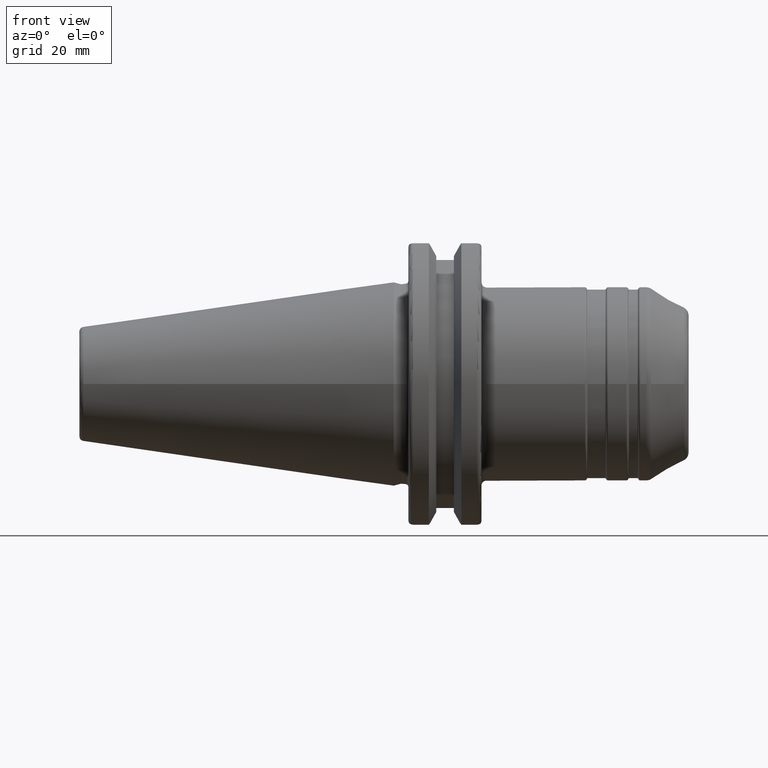
[diagram: clean part render]
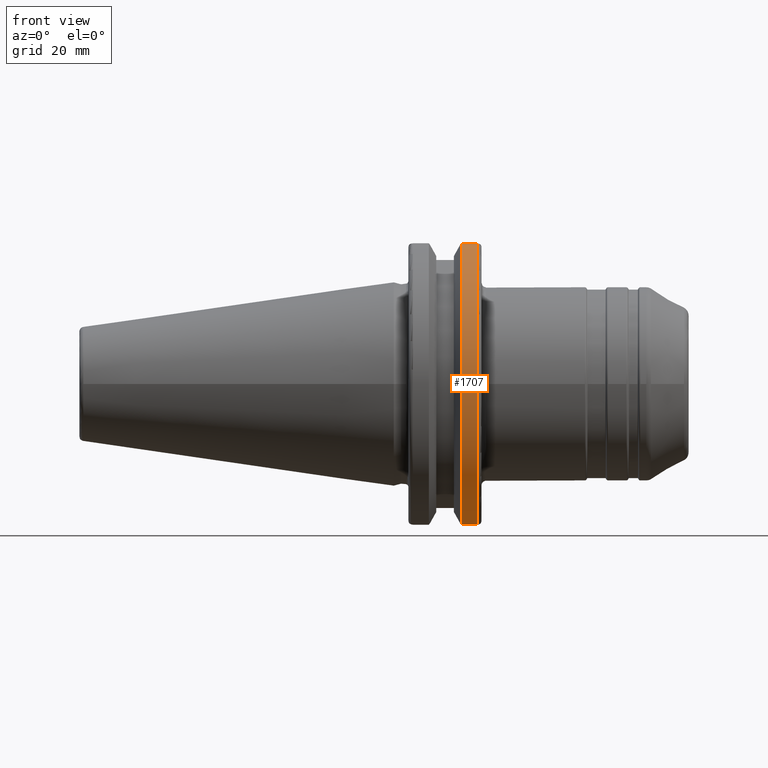
[diagram: same view with one face highlighted and labeled with its STEP entity id]
A machine part, front view. The second image highlights one B-rep face of the part: STEP entity #1707.
In plain terms, the highlighted cylindrical surface (partial cylindrical patch) has radius 31.75 mm, axis along (1, 0, 0).
Its self-contained STEP definition (entity closure, byte-faithful):
#221=LINE('',#3210,#313);
#222=LINE('',#3216,#314);
#313=VECTOR('',#2437,10.);
#314=VECTOR('',#2440,10.);
#345=CYLINDRICAL_SURFACE('',#1940,31.75);
#425=FACE_OUTER_BOUND('',#535,.T.);
#535=EDGE_LOOP('',(#1519,#1520,#1521,#1522));
#644=CIRCLE('',#1912,31.75);
#654=CIRCLE('',#1941,31.75);
#796=VERTEX_POINT('',#3027);
#797=VERTEX_POINT('',#3036);
#831=VERTEX_POINT('',#3209);
#832=VERTEX_POINT('',#3215);
#1018=EDGE_CURVE('',#796,#797,#644,.T.);
#1071=EDGE_CURVE('',#797,#831,#221,.T.);
#1073=EDGE_CURVE('',#832,#796,#222,.T.);
#1074=EDGE_CURVE('',#832,#831,#654,.T.);
#1519=ORIENTED_EDGE('',*,*,#1018,.F.);
#1520=ORIENTED_EDGE('',*,*,#1073,.F.);
#1521=ORIENTED_EDGE('',*,*,#1074,.T.);
#1522=ORIENTED_EDGE('',*,*,#1071,.F.);
#1707=ADVANCED_FACE('',(#425),#345,.T.);
#1912=AXIS2_PLACEMENT_3D('',#3037,#2355,#2356);
#1940=AXIS2_PLACEMENT_3D('',#3214,#2438,#2439);
#1941=AXIS2_PLACEMENT_3D('',#3217,#2441,#2442);
#2355=DIRECTION('center_axis',(1.,0.,0.));
#2356=DIRECTION('ref_axis',(0.,-1.,1.60812264967664E-16));
#2437=DIRECTION('',(-1.,0.,0.));
#2438=DIRECTION('center_axis',(1.,0.,0.));
#2439=DIRECTION('ref_axis',(0.,-1.,1.22464679914735E-16));
#2440=DIRECTION('',(1.,0.,0.));
#2441=DIRECTION('center_axis',(1.,0.,0.));
#2442=DIRECTION('ref_axis',(0.,0.,-1.));
#3027=CARTESIAN_POINT('',(18.05,-8.67204822802685,30.5427254764662));
#3036=CARTESIAN_POINT('',(18.05,-8.67204822802686,-30.5427254764662));
#3037=CARTESIAN_POINT('Origin',(18.05,0.,0.));
#3209=CARTESIAN_POINT('',(14.6602667690756,-8.67204822802686,-30.5427254764662));
#3210=CARTESIAN_POINT('',(16.8551333845378,-8.67204822802686,-30.5427254764662));
#3214=CARTESIAN_POINT('Origin',(16.8551333845378,0.,0.));
#3215=CARTESIAN_POINT('',(14.6602667690756,-8.67204822802685,30.5427254764662));
#3216=CARTESIAN_POINT('',(16.8551333845378,-8.67204822802685,30.5427254764662));
#3217=CARTESIAN_POINT('Origin',(14.6602667690756,0.,0.));